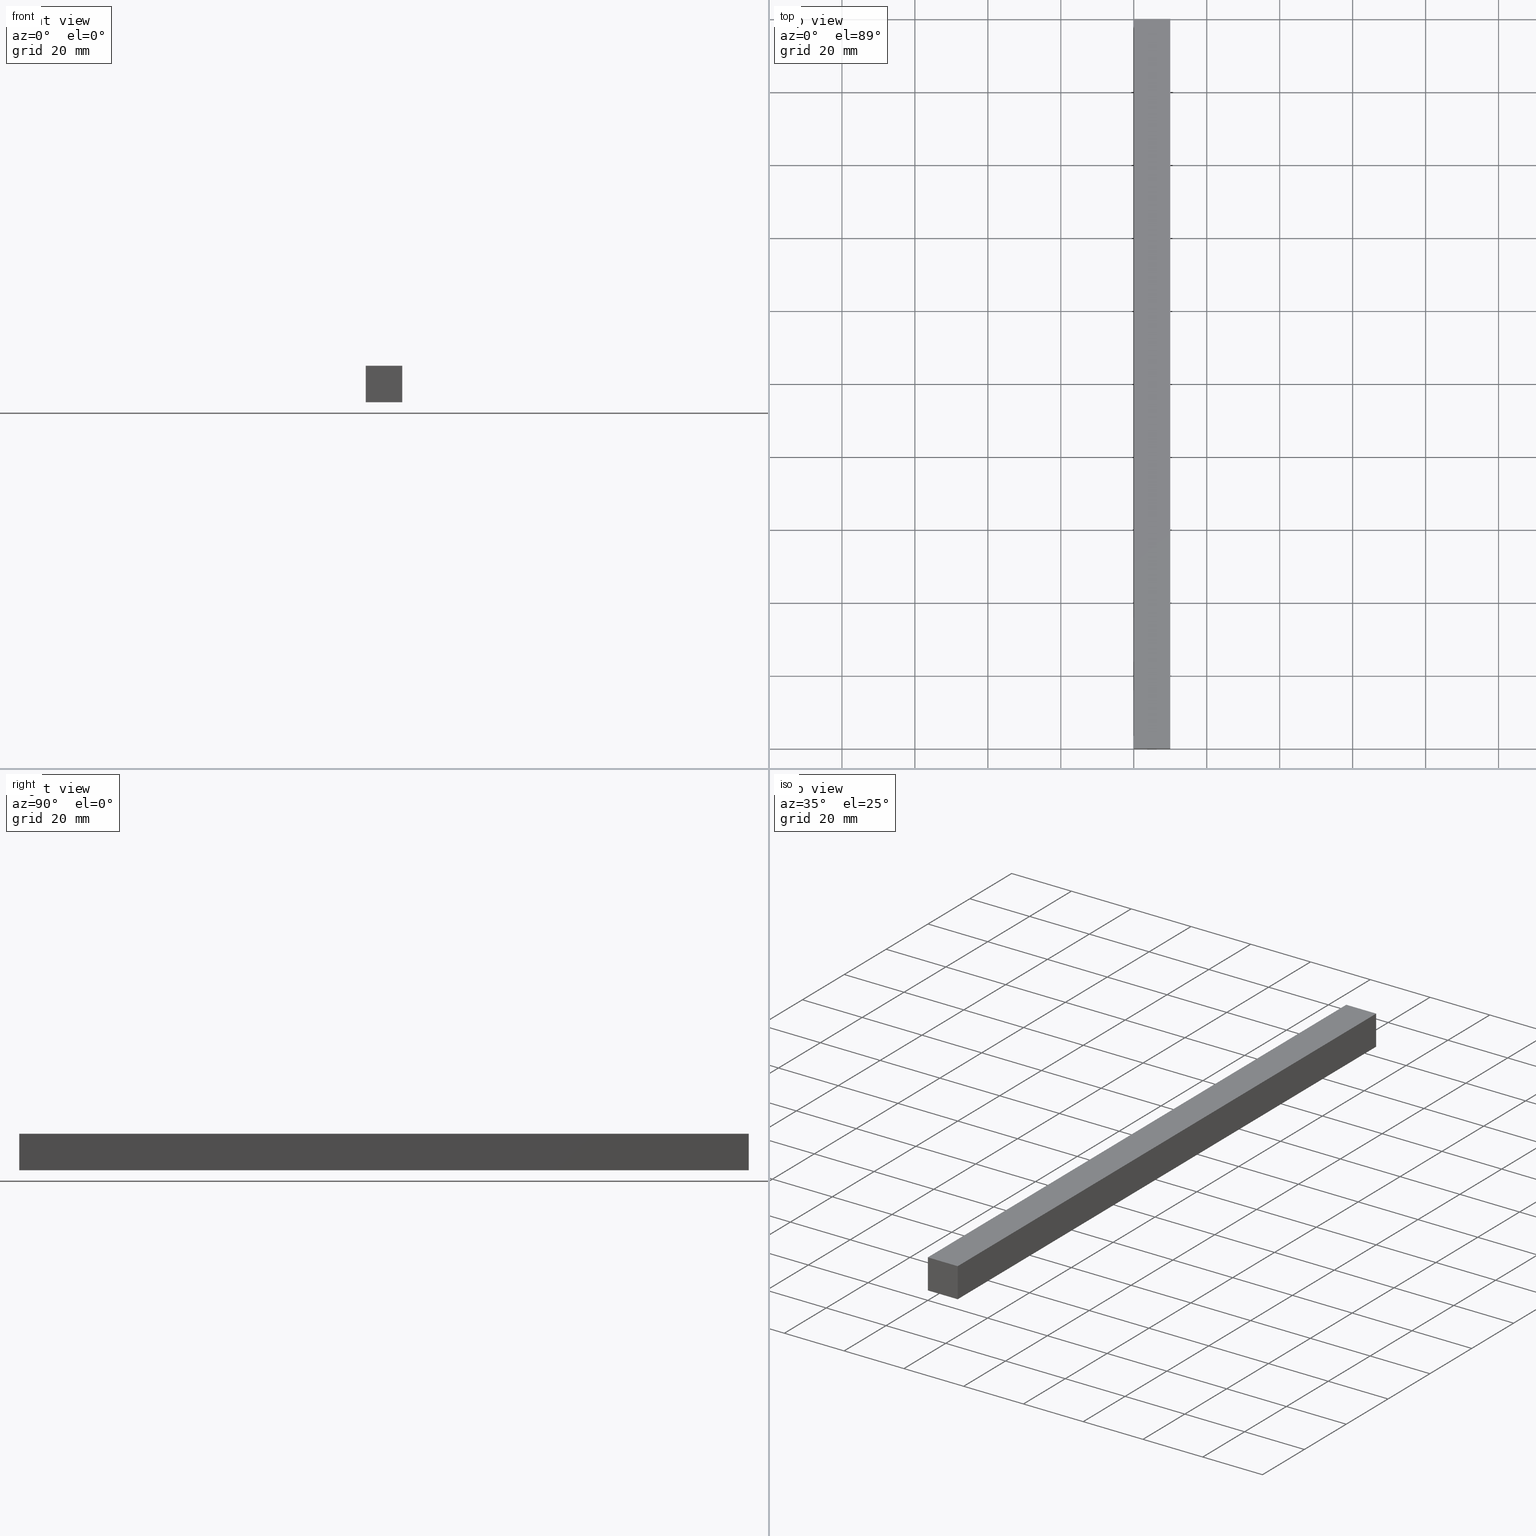
[diagram: canonical four-view strip — front | top / right | iso, engineering-drawing reading convention]
A machine part, canonical four-view strip (front | top / right | iso — engineering-drawing reading convention). The complete STEP part file that produces these views, byte-faithful:
ISO-10303-21;
HEADER;
FILE_DESCRIPTION (( 'STEP AP214' ),
    '1' );
FILE_NAME ('TM_340_7.STEP',
    '2016-05-09T05:26:42',
    ( '' ),
    ( '' ),
    'SwSTEP 2.0',
    'SolidWorks 2015',
    '' );
FILE_SCHEMA (( 'AUTOMOTIVE_DESIGN' ));
ENDSEC;

DATA;
#1 = APPLICATION_CONTEXT ( 'automotive_design' ) ;
#2 = UNCERTAINTY_MEASURE_WITH_UNIT (LENGTH_MEASURE( 1.000000000000000100E-005 ), #101, 'distance_accuracy_value', 'NONE');
#3 = CARTESIAN_POINT ( 'NONE',  ( 0.0000000000000000000, 1000.000000000000000, 0.0000000000000000000 ) ) ;
#4 = APPLICATION_CONTEXT ( 'automotive_design' ) ;
#5 = VERTEX_POINT ( 'NONE', #162 ) ;
#6 = DIRECTION ( 'NONE',  ( 0.0000000000000000000, -1.000000000000000000, 0.0000000000000000000 ) ) ;
#7 = FACE_OUTER_BOUND ( 'NONE', #209, .T. ) ;
#8 =( NAMED_UNIT ( * ) SI_UNIT ( $, .STERADIAN. ) SOLID_ANGLE_UNIT ( ) );
#9 =( GEOMETRIC_REPRESENTATION_CONTEXT ( 3 ) GLOBAL_UNCERTAINTY_ASSIGNED_CONTEXT ( ( #105 ) ) GLOBAL_UNIT_ASSIGNED_CONTEXT ( ( #79, #156, #8 ) ) REPRESENTATION_CONTEXT ( 'NONE', 'WORKASPACE' ) );
#10 = CLOSED_SHELL ( 'NONE', ( #93, #158, #136, #195, #236, #212 ) ) ;
#11 = DIRECTION ( 'NONE',  ( -0.0000000000000000000, -0.0000000000000000000, -1.000000000000000000 ) ) ;
#12 = CARTESIAN_POINT ( 'NONE',  ( 0.0000000000000000000, 200.0000000000000000, 10.00000000000000000 ) ) ;
#13 = ORIENTED_EDGE ( 'NONE', *, *, #17, .T. ) ;
#14 = LINE ( 'NONE', #127, #64 ) ;
#15 = LINE ( 'NONE', #185, #227 ) ;
#16 = EDGE_CURVE ( 'NONE', #62, #118, #231, .T. ) ;
#17 = EDGE_CURVE ( 'NONE', #19, #5, #132, .T. ) ;
#18 = PLANE ( 'NONE',  #99 ) ;
#19 = VERTEX_POINT ( 'NONE', #111 ) ;
#20 = AXIS2_PLACEMENT_3D ( 'NONE', #3, #117, #56 ) ;
#21 = DIRECTION ( 'NONE',  ( 0.0000000000000000000, 0.0000000000000000000, 1.000000000000000000 ) ) ;
#22 = VERTEX_POINT ( 'NONE', #87 ) ;
#23 = FILL_AREA_STYLE_COLOUR ( '', #82 ) ;
#24 = DIRECTION ( 'NONE',  ( -0.0000000000000000000, 1.000000000000000000, 0.0000000000000000000 ) ) ;
#25 =( NAMED_UNIT ( * ) SI_UNIT ( $, .STERADIAN. ) SOLID_ANGLE_UNIT ( ) );
#26 = SURFACE_SIDE_STYLE ('',( #46 ) ) ;
#27 = VECTOR ( 'NONE', #6, 1000.000000000000000 ) ;
#28 = FACE_OUTER_BOUND ( 'NONE', #186, .T. ) ;
#29 = PRODUCT ( 'rubber foam', 'rubber foam', '', ( #75 ) ) ;
#30 = FACE_OUTER_BOUND ( 'NONE', #108, .T. ) ;
#31 = APPLICATION_PROTOCOL_DEFINITION ( 'draft international standard', 'automotive_design', 1998, #160 ) ;
#32 = SHAPE_DEFINITION_REPRESENTATION ( #107, #213 ) ;
#33 = APPLICATION_CONTEXT ( 'automotive_design' ) ;
#34 = VERTEX_POINT ( 'NONE', #12 ) ;
#35 = PLANE ( 'NONE',  #176 ) ;
#36 = DIRECTION ( 'NONE',  ( -1.000000000000000000, -0.0000000000000000000, -0.0000000000000000000 ) ) ;
#37 = VECTOR ( 'NONE', #148, 1000.000000000000000 ) ;
#38 = LINE ( 'NONE', #45, #27 ) ;
#39 = SURFACE_STYLE_FILL_AREA ( #161 ) ;
#40 = UNCERTAINTY_MEASURE_WITH_UNIT (LENGTH_MEASURE( 1.000000000000000100E-005 ), #175, 'distance_accuracy_value', 'NONE');
#41 = AXIS2_PLACEMENT_3D ( 'NONE', #53, #201, #205 ) ;
#42 = VERTEX_POINT ( 'NONE', #95 ) ;
#43 = VECTOR ( 'NONE', #208, 1000.000000000000000 ) ;
#44 = AXIS2_PLACEMENT_3D ( 'NONE', #165, #60, #189 ) ;
#45 = CARTESIAN_POINT ( 'NONE',  ( 10.00000000000000000, 1000.000000000000000, 0.0000000000000000000 ) ) ;
#46 = SURFACE_STYLE_FILL_AREA ( #153 ) ;
#47 = LINE ( 'NONE', #140, #115 ) ;
#48 = VERTEX_POINT ( 'NONE', #170 ) ;
#49 = LINE ( 'NONE', #206, #199 ) ;
#50 = CARTESIAN_POINT ( 'NONE',  ( 0.0000000000000000000, 200.0000000000000000, 0.0000000000000000000 ) ) ;
#51 = EDGE_CURVE ( 'NONE', #5, #48, #38, .T. ) ;
#52 = DIRECTION ( 'NONE',  ( 1.000000000000000000, 0.0000000000000000000, 0.0000000000000000000 ) ) ;
#53 = CARTESIAN_POINT ( 'NONE',  ( 0.0000000000000000000, 0.0000000000000000000, 0.0000000000000000000 ) ) ;
#54 = AXIS2_PLACEMENT_3D ( 'NONE', #92, #112, #180 ) ;
#55 = SHAPE_REPRESENTATION ( 'rubber foam', ( #197 ), #166 ) ;
#56 = DIRECTION ( 'NONE',  ( -1.000000000000000000, 0.0000000000000000000, 0.0000000000000000000 ) ) ;
#57 = DIRECTION ( 'NONE',  ( 1.000000000000000000, 0.0000000000000000000, 0.0000000000000000000 ) ) ;
#58 = CARTESIAN_POINT ( 'NONE',  ( 0.0000000000000000000, 200.0000000000000000, 0.0000000000000000000 ) ) ;
#59 = DIRECTION ( 'NONE',  ( 1.000000000000000000, 0.0000000000000000000, 0.0000000000000000000 ) ) ;
#60 = DIRECTION ( 'NONE',  ( -1.000000000000000000, 0.0000000000000000000, 0.0000000000000000000 ) ) ;
#61 = DIRECTION ( 'NONE',  ( -0.0000000000000000000, -0.0000000000000000000, 1.000000000000000000 ) ) ;
#62 = VERTEX_POINT ( 'NONE', #211 ) ;
#63 = CARTESIAN_POINT ( 'NONE',  ( 0.0000000000000000000, 200.0000000000000000, 0.0000000000000000000 ) ) ;
#64 = VECTOR ( 'NONE', #61, 1000.000000000000000 ) ;
#65 = CARTESIAN_POINT ( 'NONE',  ( 0.0000000000000000000, 0.0000000000000000000, 0.0000000000000000000 ) ) ;
#66 = SHAPE_REPRESENTATION_RELATIONSHIP ( 'NONE' , 'NONE' ,  #55, #81 ) ;
#67 = LINE ( 'NONE', #50, #145 ) ;
#68 = PRODUCT_DEFINITION_CONTEXT ( 'detailed design', #160, 'design' ) ;
#69 = ORIENTED_EDGE ( 'NONE', *, *, #169, .T. ) ;
#70 = UNCERTAINTY_MEASURE_WITH_UNIT (LENGTH_MEASURE( 1.000000000000000100E-005 ), #219, 'distance_accuracy_value', 'NONE');
#71 =( GEOMETRIC_REPRESENTATION_CONTEXT ( 3 ) GLOBAL_UNCERTAINTY_ASSIGNED_CONTEXT ( ( #70 ) ) GLOBAL_UNIT_ASSIGNED_CONTEXT ( ( #219, #78, #217 ) ) REPRESENTATION_CONTEXT ( 'NONE', 'WORKASPACE' ) );
#72 = LINE ( 'NONE', #85, #123 ) ;
#73 = AXIS2_PLACEMENT_3D ( 'NONE', #172, #119, #129 ) ;
#74 = VECTOR ( 'NONE', #124, 1000.000000000000000 ) ;
#75 = PRODUCT_CONTEXT ( 'NONE', #4, 'mechanical' ) ;
#76 = PRODUCT_DEFINITION_SHAPE ( 'NONE', 'NONE',  #104 ) ;
#77 = ORIENTED_EDGE ( 'NONE', *, *, #237, .T. ) ;
#78 =( NAMED_UNIT ( * ) PLANE_ANGLE_UNIT ( ) SI_UNIT ( $, .RADIAN. ) );
#79 =( LENGTH_UNIT ( ) NAMED_UNIT ( * ) SI_UNIT ( .MILLI., .METRE. ) );
#80 = DIRECTION ( 'NONE',  ( 0.0000000000000000000, 0.0000000000000000000, 1.000000000000000000 ) ) ;
#81 = ADVANCED_BREP_SHAPE_REPRESENTATION ( '', ( #221, #197 ), #166 ) ;
#82 = COLOUR_RGB ( '',0.7921568627450980000, 0.8196078431372548800, 0.9333333333333333500 ) ;
#83 = FACE_OUTER_BOUND ( 'NONE', #164, .T. ) ;
#84 = SURFACE_SIDE_STYLE ('',( #39 ) ) ;
#85 = CARTESIAN_POINT ( 'NONE',  ( 0.0000000000000000000, 0.0000000000000000000, 10.00000000000000000 ) ) ;
#86 = STYLED_ITEM ( 'NONE', ( #173 ), #221 ) ;
#87 = CARTESIAN_POINT ( 'NONE',  ( 10.00000000000000000, 0.0000000000000000000, 10.00000000000000000 ) ) ;
#88 = AXIS2_PLACEMENT_3D ( 'NONE', #188, #80, #57 ) ;
#89 = ORIENTED_EDGE ( 'NONE', *, *, #179, .F. ) ;
#90 = VECTOR ( 'NONE', #192, 1000.000000000000000 ) ;
#91 = ORIENTED_EDGE ( 'NONE', *, *, #198, .F. ) ;
#92 = CARTESIAN_POINT ( 'NONE',  ( 0.0000000000000000000, 0.0000000000000000000, 0.0000000000000000000 ) ) ;
#93 = ADVANCED_FACE ( 'NONE', ( #30 ), #114, .T. ) ;
#94 =( REPRESENTATION_RELATIONSHIP ('NONE','NONE', #213, #55 ) REPRESENTATION_RELATIONSHIP_WITH_TRANSFORMATION ( #178 )SHAPE_REPRESENTATION_RELATIONSHIP( ) );
#95 = CARTESIAN_POINT ( 'NONE',  ( 10.00000000000000000, 200.0000000000000000, 10.00000000000000000 ) ) ;
#96 = ORIENTED_EDGE ( 'NONE', *, *, #237, .F. ) ;
#97 =( NAMED_UNIT ( * ) PLANE_ANGLE_UNIT ( ) SI_UNIT ( $, .RADIAN. ) );
#98 = FILL_AREA_STYLE_COLOUR ( '', #133 ) ;
#99 = AXIS2_PLACEMENT_3D ( 'NONE', #65, #24, #163 ) ;
#100 =( NAMED_UNIT ( * ) SI_UNIT ( $, .STERADIAN. ) SOLID_ANGLE_UNIT ( ) );
#101 =( LENGTH_UNIT ( ) NAMED_UNIT ( * ) SI_UNIT ( .MILLI., .METRE. ) );
#102 = ORIENTED_EDGE ( 'NONE', *, *, #150, .T. ) ;
#103 = PLANE ( 'NONE',  #20 ) ;
#104 = PRODUCT_DEFINITION ( 'UNKNOWN', '', #155, #68 ) ;
#105 = UNCERTAINTY_MEASURE_WITH_UNIT (LENGTH_MEASURE( 1.000000000000000100E-005 ), #79, 'distance_accuracy_value', 'NONE');
#106 = SURFACE_STYLE_USAGE ( .BOTH. , #84 ) ;
#107 = PRODUCT_DEFINITION_SHAPE ( 'NONE', 'NONE',  #122 ) ;
#108 = EDGE_LOOP ( 'NONE', ( #89, #154, #200, #157 ) ) ;
#109 = PRESENTATION_LAYER_ASSIGNMENT (  '', '', ( #86 ) ) ;
#110 = PRODUCT_CONTEXT ( 'NONE', #1, 'mechanical' ) ;
#111 = CARTESIAN_POINT ( 'NONE',  ( 0.0000000000000000000, 200.0000000000000000, 0.0000000000000000000 ) ) ;
#112 = DIRECTION ( 'NONE',  ( 0.0000000000000000000, 0.0000000000000000000, 1.000000000000000000 ) ) ;
#113 = ORIENTED_EDGE ( 'NONE', *, *, #179, .T. ) ;
#114 = PLANE ( 'NONE',  #235 ) ;
#115 = VECTOR ( 'NONE', #151, 1000.000000000000000 ) ;
#116 = CARTESIAN_POINT ( 'NONE',  ( 0.0000000000000000000, 0.0000000000000000000, 0.0000000000000000000 ) ) ;
#117 = DIRECTION ( 'NONE',  ( 0.0000000000000000000, 0.0000000000000000000, -1.000000000000000000 ) ) ;
#118 = VERTEX_POINT ( 'NONE', #193 ) ;
#119 = DIRECTION ( 'NONE',  ( 1.000000000000000000, 0.0000000000000000000, 0.0000000000000000000 ) ) ;
#120 = ORIENTED_EDGE ( 'NONE', *, *, #194, .T. ) ;
#121 = ORIENTED_EDGE ( 'NONE', *, *, #196, .F. ) ;
#122 = PRODUCT_DEFINITION ( 'UNKNOWN', '', #130, #229 ) ;
#123 = VECTOR ( 'NONE', #36, 1000.000000000000000 ) ;
#124 = DIRECTION ( 'NONE',  ( -0.0000000000000000000, -0.0000000000000000000, -1.000000000000000000 ) ) ;
#125 = APPLICATION_PROTOCOL_DEFINITION ( 'draft international standard', 'automotive_design', 1998, #33 ) ;
#126 = LINE ( 'NONE', #204, #90 ) ;
#127 = CARTESIAN_POINT ( 'NONE',  ( 10.00000000000000000, 0.0000000000000000000, 0.0000000000000000000 ) ) ;
#128 = MECHANICAL_DESIGN_GEOMETRIC_PRESENTATION_REPRESENTATION (  '', ( #86 ), #139 ) ;
#129 = DIRECTION ( 'NONE',  ( 0.0000000000000000000, 0.0000000000000000000, -1.000000000000000000 ) ) ;
#130 = PRODUCT_DEFINITION_FORMATION_WITH_SPECIFIED_SOURCE ( 'ANY', '', #230, .NOT_KNOWN. ) ;
#131 = EDGE_CURVE ( 'NONE', #118, #48, #47, .T. ) ;
#132 = LINE ( 'NONE', #63, #238 ) ;
#133 = COLOUR_RGB ( '',0.7921568627450980000, 0.8196078431372548800, 0.9333333333333333500 ) ;
#134 = SHAPE_DEFINITION_REPRESENTATION ( #76, #55 ) ;
#135 = ORIENTED_EDGE ( 'NONE', *, *, #232, .F. ) ;
#136 = ADVANCED_FACE ( 'NONE', ( #223 ), #103, .T. ) ;
#137 = ORIENTED_EDGE ( 'NONE', *, *, #131, .T. ) ;
#138 = DIRECTION ( 'NONE',  ( 1.000000000000000000, -0.0000000000000000000, -0.0000000000000000000 ) ) ;
#139 =( GEOMETRIC_REPRESENTATION_CONTEXT ( 3 ) GLOBAL_UNCERTAINTY_ASSIGNED_CONTEXT ( ( #40 ) ) GLOBAL_UNIT_ASSIGNED_CONTEXT ( ( #175, #97, #100 ) ) REPRESENTATION_CONTEXT ( 'NONE', 'WORKASPACE' ) );
#140 = CARTESIAN_POINT ( 'NONE',  ( 0.0000000000000000000, 0.0000000000000000000, 0.0000000000000000000 ) ) ;
#141 = PLANE ( 'NONE',  #44 ) ;
#142 = PRODUCT_RELATED_PRODUCT_CATEGORY ( 'part', '', ( #230 ) ) ;
#143 = FACE_OUTER_BOUND ( 'NONE', #202, .T. ) ;
#144 = DIRECTION ( 'NONE',  ( 0.0000000000000000000, -1.000000000000000000, 0.0000000000000000000 ) ) ;
#145 = VECTOR ( 'NONE', #11, 1000.000000000000000 ) ;
#146 = SURFACE_STYLE_USAGE ( .BOTH. , #26 ) ;
#147 = CARTESIAN_POINT ( 'NONE',  ( 10.00000000000000000, 1000.000000000000000, 10.00000000000000000 ) ) ;
#148 = DIRECTION ( 'NONE',  ( 0.0000000000000000000, -1.000000000000000000, 0.0000000000000000000 ) ) ;
#149 = ORIENTED_EDGE ( 'NONE', *, *, #51, .F. ) ;
#150 = EDGE_CURVE ( 'NONE', #34, #19, #67, .T. ) ;
#151 = DIRECTION ( 'NONE',  ( 1.000000000000000000, -0.0000000000000000000, -0.0000000000000000000 ) ) ;
#152 = CARTESIAN_POINT ( 'NONE',  ( 0.0000000000000000000, 0.0000000000000000000, 0.0000000000000000000 ) ) ;
#153 = FILL_AREA_STYLE ('',( #23 ) ) ;
#154 = ORIENTED_EDGE ( 'NONE', *, *, #194, .F. ) ;
#155 = PRODUCT_DEFINITION_FORMATION_WITH_SPECIFIED_SOURCE ( 'ANY', '', #29, .NOT_KNOWN. ) ;
#156 =( NAMED_UNIT ( * ) PLANE_ANGLE_UNIT ( ) SI_UNIT ( $, .RADIAN. ) );
#157 = ORIENTED_EDGE ( 'NONE', *, *, #198, .T. ) ;
#158 = ADVANCED_FACE ( 'NONE', ( #83 ), #141, .T. ) ;
#159 = CARTESIAN_POINT ( 'NONE',  ( 10.00000000000000000, 1000.000000000000000, 10.00000000000000000 ) ) ;
#160 = APPLICATION_CONTEXT ( 'automotive_design' ) ;
#161 = FILL_AREA_STYLE ('',( #98 ) ) ;
#162 = CARTESIAN_POINT ( 'NONE',  ( 10.00000000000000000, 200.0000000000000000, 0.0000000000000000000 ) ) ;
#163 = DIRECTION ( 'NONE',  ( 1.000000000000000000, 0.0000000000000000000, 0.0000000000000000000 ) ) ;
#164 = EDGE_LOOP ( 'NONE', ( #174, #91, #102, #77 ) ) ;
#165 = CARTESIAN_POINT ( 'NONE',  ( 0.0000000000000000000, 1000.000000000000000, 10.00000000000000000 ) ) ;
#166 =( GEOMETRIC_REPRESENTATION_CONTEXT ( 3 ) GLOBAL_UNCERTAINTY_ASSIGNED_CONTEXT ( ( #2 ) ) GLOBAL_UNIT_ASSIGNED_CONTEXT ( ( #101, #224, #25 ) ) REPRESENTATION_CONTEXT ( 'NONE', 'WORKASPACE' ) );
#167 = PLANE ( 'NONE',  #73 ) ;
#168 = CONTEXT_DEPENDENT_SHAPE_REPRESENTATION ( #94, #191 ) ;
#169 = EDGE_CURVE ( 'NONE', #48, #22, #14, .T. ) ;
#170 = CARTESIAN_POINT ( 'NONE',  ( 10.00000000000000000, 0.0000000000000000000, 0.0000000000000000000 ) ) ;
#171 = PRODUCT_RELATED_PRODUCT_CATEGORY ( 'part', '', ( #29 ) ) ;
#172 = CARTESIAN_POINT ( 'NONE',  ( 10.00000000000000000, 1000.000000000000000, 0.0000000000000000000 ) ) ;
#173 = PRESENTATION_STYLE_ASSIGNMENT (( #146 ) ) ;
#174 = ORIENTED_EDGE ( 'NONE', *, *, #16, .F. ) ;
#175 =( LENGTH_UNIT ( ) NAMED_UNIT ( * ) SI_UNIT ( .MILLI., .METRE. ) );
#176 = AXIS2_PLACEMENT_3D ( 'NONE', #58, #215, #59 ) ;
#177 = DIRECTION ( 'NONE',  ( 0.0000000000000000000, 0.0000000000000000000, 1.000000000000000000 ) ) ;
#178 = ITEM_DEFINED_TRANSFORMATION ( 'NONE', 'NONE', #54,  #197 ) ;
#179 = EDGE_CURVE ( 'NONE', #22, #62, #72, .T. ) ;
#180 = DIRECTION ( 'NONE',  ( 1.000000000000000000, 0.0000000000000000000, 0.0000000000000000000 ) ) ;
#181 = ORIENTED_EDGE ( 'NONE', *, *, #131, .F. ) ;
#182 = CARTESIAN_POINT ( 'NONE',  ( 0.0000000000000000000, 200.0000000000000000, 10.00000000000000000 ) ) ;
#183 = DIRECTION ( 'NONE',  ( 1.000000000000000000, 0.0000000000000000000, 0.0000000000000000000 ) ) ;
#184 = LINE ( 'NONE', #159, #37 ) ;
#185 = CARTESIAN_POINT ( 'NONE',  ( 0.0000000000000000000, 1000.000000000000000, 0.0000000000000000000 ) ) ;
#186 = EDGE_LOOP ( 'NONE', ( #135, #121, #216, #207 ) ) ;
#187 = PRESENTATION_STYLE_ASSIGNMENT (( #106 ) ) ;
#188 = CARTESIAN_POINT ( 'NONE',  ( 0.0000000000000000000, 0.0000000000000000000, 0.0000000000000000000 ) ) ;
#189 = DIRECTION ( 'NONE',  ( 0.0000000000000000000, 0.0000000000000000000, 1.000000000000000000 ) ) ;
#190 = ORIENTED_EDGE ( 'NONE', *, *, #169, .F. ) ;
#191 = PRODUCT_DEFINITION_SHAPE ( 'NONE', 'NONE',  #239 ) ;
#192 = DIRECTION ( 'NONE',  ( 0.0000000000000000000, -1.000000000000000000, 0.0000000000000000000 ) ) ;
#193 = CARTESIAN_POINT ( 'NONE',  ( 0.0000000000000000000, 0.0000000000000000000, 0.0000000000000000000 ) ) ;
#194 = EDGE_CURVE ( 'NONE', #42, #22, #184, .T. ) ;
#195 = ADVANCED_FACE ( 'NONE', ( #7 ), #167, .T. ) ;
#196 = EDGE_CURVE ( 'NONE', #5, #42, #49, .T. ) ;
#197 = AXIS2_PLACEMENT_3D ( 'NONE', #152, #177, #52 ) ;
#198 = EDGE_CURVE ( 'NONE', #34, #62, #126, .T. ) ;
#199 = VECTOR ( 'NONE', #226, 1000.000000000000000 ) ;
#200 = ORIENTED_EDGE ( 'NONE', *, *, #232, .T. ) ;
#201 = DIRECTION ( 'NONE',  ( 0.0000000000000000000, 0.0000000000000000000, 1.000000000000000000 ) ) ;
#202 = EDGE_LOOP ( 'NONE', ( #113, #214, #137, #69 ) ) ;
#203 = APPLICATION_PROTOCOL_DEFINITION ( 'draft international standard', 'automotive_design', 1998, #1 ) ;
#204 = CARTESIAN_POINT ( 'NONE',  ( 0.0000000000000000000, 1000.000000000000000, 10.00000000000000000 ) ) ;
#205 = DIRECTION ( 'NONE',  ( 1.000000000000000000, 0.0000000000000000000, 0.0000000000000000000 ) ) ;
#206 = CARTESIAN_POINT ( 'NONE',  ( 10.00000000000000000, 200.0000000000000000, 0.0000000000000000000 ) ) ;
#207 = ORIENTED_EDGE ( 'NONE', *, *, #150, .F. ) ;
#208 = DIRECTION ( 'NONE',  ( -1.000000000000000000, -0.0000000000000000000, -0.0000000000000000000 ) ) ;
#209 = EDGE_LOOP ( 'NONE', ( #190, #149, #218, #120 ) ) ;
#210 = STYLED_ITEM ( 'NONE', ( #187 ), #81 ) ;
#211 = CARTESIAN_POINT ( 'NONE',  ( 0.0000000000000000000, 0.0000000000000000000, 10.00000000000000000 ) ) ;
#212 = ADVANCED_FACE ( 'NONE', ( #143 ), #18, .F. ) ;
#213 = SHAPE_REPRESENTATION ( 'TM_340_7', ( #88, #54 ), #71 ) ;
#214 = ORIENTED_EDGE ( 'NONE', *, *, #16, .T. ) ;
#215 = DIRECTION ( 'NONE',  ( -0.0000000000000000000, 1.000000000000000000, 0.0000000000000000000 ) ) ;
#216 = ORIENTED_EDGE ( 'NONE', *, *, #17, .F. ) ;
#217 =( NAMED_UNIT ( * ) SI_UNIT ( $, .STERADIAN. ) SOLID_ANGLE_UNIT ( ) );
#218 = ORIENTED_EDGE ( 'NONE', *, *, #196, .T. ) ;
#219 =( LENGTH_UNIT ( ) NAMED_UNIT ( * ) SI_UNIT ( .MILLI., .METRE. ) );
#220 = PRESENTATION_LAYER_ASSIGNMENT (  '', '', ( #210 ) ) ;
#221 = MANIFOLD_SOLID_BREP ( '���߰�1', #10 ) ;
#222 = APPLICATION_PROTOCOL_DEFINITION ( 'draft international standard', 'automotive_design', 1998, #4 ) ;
#223 = FACE_OUTER_BOUND ( 'NONE', #225, .T. ) ;
#224 =( NAMED_UNIT ( * ) PLANE_ANGLE_UNIT ( ) SI_UNIT ( $, .RADIAN. ) );
#225 = EDGE_LOOP ( 'NONE', ( #181, #96, #13, #234 ) ) ;
#226 = DIRECTION ( 'NONE',  ( -0.0000000000000000000, -0.0000000000000000000, 1.000000000000000000 ) ) ;
#227 = VECTOR ( 'NONE', #144, 1000.000000000000000 ) ;
#228 = LINE ( 'NONE', #182, #43 ) ;
#229 = PRODUCT_DEFINITION_CONTEXT ( 'detailed design', #33, 'design' ) ;
#230 = PRODUCT ( 'TM_340_7', 'TM_340_7', '', ( #110 ) ) ;
#231 = LINE ( 'NONE', #116, #74 ) ;
#232 = EDGE_CURVE ( 'NONE', #42, #34, #228, .T. ) ;
#233 = MECHANICAL_DESIGN_GEOMETRIC_PRESENTATION_REPRESENTATION (  '', ( #210 ), #9 ) ;
#234 = ORIENTED_EDGE ( 'NONE', *, *, #51, .T. ) ;
#235 = AXIS2_PLACEMENT_3D ( 'NONE', #147, #21, #183 ) ;
#236 = ADVANCED_FACE ( 'NONE', ( #28 ), #35, .T. ) ;
#237 = EDGE_CURVE ( 'NONE', #19, #118, #15, .T. ) ;
#238 = VECTOR ( 'NONE', #138, 1000.000000000000000 ) ;
#239 = NEXT_ASSEMBLY_USAGE_OCCURRENCE ( 'NAUO1', ' ', ' ', #122, #104, $ ) ;
ENDSEC;
END-ISO-10303-21;
